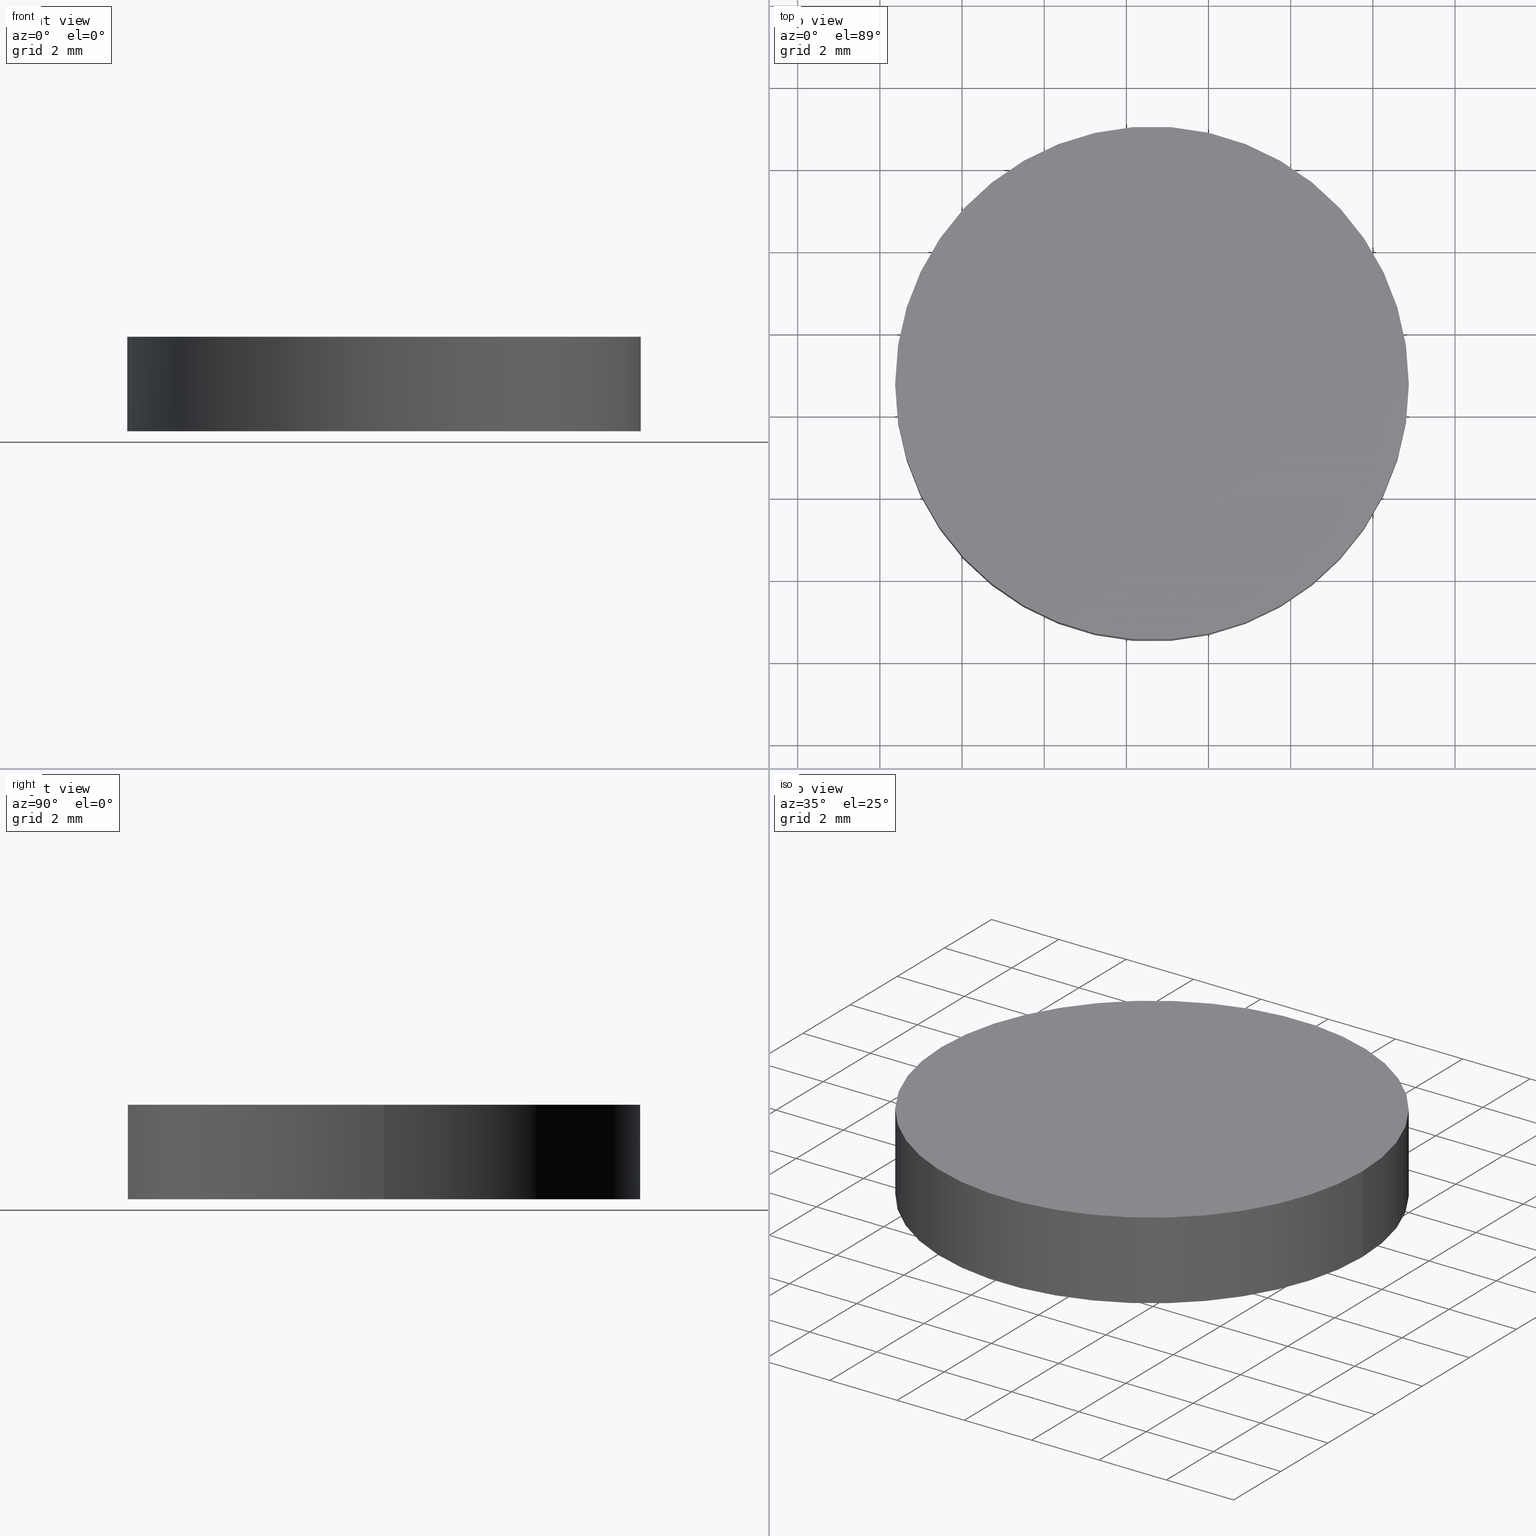
[diagram: canonical four-view strip — front | top / right | iso, engineering-drawing reading convention]
A machine part, canonical four-view strip (front | top / right | iso — engineering-drawing reading convention). The complete STEP part file that produces these views, byte-faithful:
ISO-10303-21;
HEADER;
FILE_DESCRIPTION (( 'STEP AP214' ),
    '1' );
FILE_NAME ('3025507.STEP',
    '2019-08-13T03:04:33',
    ( '' ),
    ( '' ),
    'SwSTEP 2.0',
    'SolidWorks 2016',
    '' );
FILE_SCHEMA (( 'AUTOMOTIVE_DESIGN' ));
ENDSEC;

DATA;
#1 = SURFACE_SIDE_STYLE ('',( #101 ) ) ;
#2 = LINE ( 'NONE', #33, #39 ) ;
#3 = STYLED_ITEM ( 'NONE', ( #12 ), #5 ) ;
#4 = CIRCLE ( 'NONE', #9, 6.249999999999998200 ) ;
#5 = ADVANCED_BREP_SHAPE_REPRESENTATION ( '3025507', ( #137, #95 ), #52 ) ;
#6 = DIRECTION ( 'NONE',  ( 1.000000000000000000, 0.0000000000000000000, 0.0000000000000000000 ) ) ;
#7 = PLANE ( 'NONE',  #120 ) ;
#8 = DIRECTION ( 'NONE',  ( 1.000000000000000000, 0.0000000000000000000, -0.0000000000000000000 ) ) ;
#9 = AXIS2_PLACEMENT_3D ( 'NONE', #124, #99, #48 ) ;
#10 = LINE ( 'NONE', #129, #100 ) ;
#11 = FACE_OUTER_BOUND ( 'NONE', #96, .T. ) ;
#12 = PRESENTATION_STYLE_ASSIGNMENT (( #56 ) ) ;
#13 = PRODUCT ( '3025507', '3025507', '', ( #43 ) ) ;
#14 = PRODUCT_DEFINITION ( 'δ֪', '', #15, #109 ) ;
#15 = PRODUCT_DEFINITION_FORMATION_WITH_SPECIFIED_SOURCE ( '�κ�', '', #13, .NOT_KNOWN. ) ;
#16 = SURFACE_STYLE_USAGE ( .BOTH. , #66 ) ;
#17 = CARTESIAN_POINT ( 'NONE',  ( 50.62396788794254100, 30.78162091726329700, 0.0000000000000000000 ) ) ;
#18 = COLOUR_RGB ( '',1.000000000000000000, 1.000000000000000000, 1.000000000000000000 ) ;
#19 = ORIENTED_EDGE ( 'NONE', *, *, #113, .F. ) ;
#20 = EDGE_CURVE ( 'NONE', #93, #112, #40, .T. ) ;
#21 = CARTESIAN_POINT ( 'NONE',  ( 0.0000000000000000000, 0.0000000000000000000, 0.0000000000000000000 ) ) ;
#22 = ORIENTED_EDGE ( 'NONE', *, *, #24, .F. ) ;
#23 = ORIENTED_EDGE ( 'NONE', *, *, #57, .T. ) ;
#24 = EDGE_CURVE ( 'NONE', #54, #93, #2, .T. ) ;
#25 = PLANE ( 'NONE',  #28 ) ;
#26 = CARTESIAN_POINT ( 'NONE',  ( 44.37396788794254800, 30.78162091726329700, 0.0000000000000000000 ) ) ;
#27 = DIRECTION ( 'NONE',  ( 0.0000000000000000000, 0.0000000000000000000, 1.000000000000000000 ) ) ;
#28 = AXIS2_PLACEMENT_3D ( 'NONE', #127, #136, #47 ) ;
#29 = UNCERTAINTY_MEASURE_WITH_UNIT (LENGTH_MEASURE( 1.000000000000000100E-005 ), #53, 'distance_accuracy_value', 'NONE');
#30 = ORIENTED_EDGE ( 'NONE', *, *, #24, .T. ) ;
#31 = AXIS2_PLACEMENT_3D ( 'NONE', #117, #87, #80 ) ;
#32 = AXIS2_PLACEMENT_3D ( 'NONE', #17, #61, #6 ) ;
#33 = CARTESIAN_POINT ( 'NONE',  ( 44.37396788794254800, 30.78162091726329700, 2.299999999999999800 ) ) ;
#34 = FACE_OUTER_BOUND ( 'NONE', #122, .T. ) ;
#35 =( GEOMETRIC_REPRESENTATION_CONTEXT ( 3 ) GLOBAL_UNCERTAINTY_ASSIGNED_CONTEXT ( ( #88 ) ) GLOBAL_UNIT_ASSIGNED_CONTEXT ( ( #71, #85, #94 ) ) REPRESENTATION_CONTEXT ( 'NONE', 'WORKASPACE' ) );
#36 = APPLICATION_PROTOCOL_DEFINITION ( 'draft international standard', 'automotive_design', 1998, #73 ) ;
#37 =( NAMED_UNIT ( * ) SI_UNIT ( $, .STERADIAN. ) SOLID_ANGLE_UNIT ( ) );
#38 = AXIS2_PLACEMENT_3D ( 'NONE', #50, #46, #123 ) ;
#39 = VECTOR ( 'NONE', #98, 1000.000000000000000 ) ;
#40 = CIRCLE ( 'NONE', #32, 6.249999999999998200 ) ;
#41 = STYLED_ITEM ( 'NONE', ( #92 ), #137 ) ;
#42 = CIRCLE ( 'NONE', #130, 6.249999999999998200 ) ;
#43 = PRODUCT_CONTEXT ( 'NONE', #73, 'mechanical' ) ;
#44 = ADVANCED_FACE ( 'NONE', ( #135 ), #25, .F. ) ;
#45 = ADVANCED_FACE ( 'NONE', ( #34 ), #111, .T. ) ;
#46 = DIRECTION ( 'NONE',  ( 0.0000000000000000000, 0.0000000000000000000, 1.000000000000000000 ) ) ;
#47 = DIRECTION ( 'NONE',  ( 1.000000000000000000, 0.0000000000000000000, -0.0000000000000000000 ) ) ;
#48 = DIRECTION ( 'NONE',  ( 1.000000000000000000, 0.0000000000000000000, 0.0000000000000000000 ) ) ;
#49 = MECHANICAL_DESIGN_GEOMETRIC_PRESENTATION_REPRESENTATION (  '', ( #41 ), #97 ) ;
#50 = CARTESIAN_POINT ( 'NONE',  ( 50.62396788794254100, 30.78162091726329700, 0.0000000000000000000 ) ) ;
#51 = DIRECTION ( 'NONE',  ( -0.0000000000000000000, -0.0000000000000000000, -1.000000000000000000 ) ) ;
#52 =( GEOMETRIC_REPRESENTATION_CONTEXT ( 3 ) GLOBAL_UNCERTAINTY_ASSIGNED_CONTEXT ( ( #29 ) ) GLOBAL_UNIT_ASSIGNED_CONTEXT ( ( #53, #83, #37 ) ) REPRESENTATION_CONTEXT ( 'NONE', 'WORKASPACE' ) );
#53 =( LENGTH_UNIT ( ) NAMED_UNIT ( * ) SI_UNIT ( .MILLI., .METRE. ) );
#54 = VERTEX_POINT ( 'NONE', #65 ) ;
#55 = CARTESIAN_POINT ( 'NONE',  ( 50.62396788794254100, 30.78162091726329700, 2.299999999999999800 ) ) ;
#56 = SURFACE_STYLE_USAGE ( .BOTH. , #1 ) ;
#57 = EDGE_CURVE ( 'NONE', #112, #93, #67, .T. ) ;
#58 = ORIENTED_EDGE ( 'NONE', *, *, #72, .T. ) ;
#59 = APPLICATION_PROTOCOL_DEFINITION ( 'draft international standard', 'automotive_design', 1998, #121 ) ;
#60 = FACE_OUTER_BOUND ( 'NONE', #133, .T. ) ;
#61 = DIRECTION ( 'NONE',  ( 0.0000000000000000000, 0.0000000000000000000, 1.000000000000000000 ) ) ;
#62 = MECHANICAL_DESIGN_GEOMETRIC_PRESENTATION_REPRESENTATION (  '', ( #3 ), #35 ) ;
#63 = DIRECTION ( 'NONE',  ( -1.000000000000000000, 0.0000000000000000000, 0.0000000000000000000 ) ) ;
#64 = UNCERTAINTY_MEASURE_WITH_UNIT (LENGTH_MEASURE( 1.000000000000000100E-005 ), #118, 'distance_accuracy_value', 'NONE');
#65 = CARTESIAN_POINT ( 'NONE',  ( 44.37396788794254800, 30.78162091726329700, 2.299999999999999800 ) ) ;
#66 = SURFACE_SIDE_STYLE ('',( #75 ) ) ;
#67 = CIRCLE ( 'NONE', #38, 6.249999999999998200 ) ;
#68 = FILL_AREA_STYLE_COLOUR ( '', #18 ) ;
#69 =( NAMED_UNIT ( * ) PLANE_ANGLE_UNIT ( ) SI_UNIT ( $, .RADIAN. ) );
#70 = DIRECTION ( 'NONE',  ( 1.000000000000000000, 0.0000000000000000000, 0.0000000000000000000 ) ) ;
#71 =( LENGTH_UNIT ( ) NAMED_UNIT ( * ) SI_UNIT ( .MILLI., .METRE. ) );
#72 = EDGE_CURVE ( 'NONE', #54, #89, #4, .T. ) ;
#73 = APPLICATION_CONTEXT ( 'automotive_design' ) ;
#74 = FILL_AREA_STYLE ('',( #132 ) ) ;
#75 = SURFACE_STYLE_FILL_AREA ( #91 ) ;
#76 = PRODUCT_DEFINITION_SHAPE ( 'NONE', 'NONE',  #14 ) ;
#77 = PRODUCT_RELATED_PRODUCT_CATEGORY ( 'part', '', ( #13 ) ) ;
#78 = ADVANCED_FACE ( 'NONE', ( #11 ), #86, .T. ) ;
#79 = ORIENTED_EDGE ( 'NONE', *, *, #72, .F. ) ;
#80 = DIRECTION ( 'NONE',  ( -1.000000000000000000, 0.0000000000000000000, 0.0000000000000000000 ) ) ;
#81 = PRESENTATION_LAYER_ASSIGNMENT (  '', '', ( #41 ) ) ;
#82 = ORIENTED_EDGE ( 'NONE', *, *, #20, .F. ) ;
#83 =( NAMED_UNIT ( * ) PLANE_ANGLE_UNIT ( ) SI_UNIT ( $, .RADIAN. ) );
#84 = ORIENTED_EDGE ( 'NONE', *, *, #20, .T. ) ;
#85 =( NAMED_UNIT ( * ) PLANE_ANGLE_UNIT ( ) SI_UNIT ( $, .RADIAN. ) );
#86 = CYLINDRICAL_SURFACE ( 'NONE', #105, 6.249999999999998200 ) ;
#87 = DIRECTION ( 'NONE',  ( -0.0000000000000000000, -0.0000000000000000000, -1.000000000000000000 ) ) ;
#88 = UNCERTAINTY_MEASURE_WITH_UNIT (LENGTH_MEASURE( 1.000000000000000100E-005 ), #71, 'distance_accuracy_value', 'NONE');
#89 = VERTEX_POINT ( 'NONE', #126 ) ;
#90 = CARTESIAN_POINT ( 'NONE',  ( 50.62396788794254100, 30.78162091726329700, 2.299999999999999800 ) ) ;
#91 = FILL_AREA_STYLE ('',( #68 ) ) ;
#92 = PRESENTATION_STYLE_ASSIGNMENT (( #16 ) ) ;
#93 = VERTEX_POINT ( 'NONE', #26 ) ;
#94 =( NAMED_UNIT ( * ) SI_UNIT ( $, .STERADIAN. ) SOLID_ANGLE_UNIT ( ) );
#95 = AXIS2_PLACEMENT_3D ( 'NONE', #21, #119, #103 ) ;
#96 = EDGE_LOOP ( 'NONE', ( #104, #108, #23, #22 ) ) ;
#97 =( GEOMETRIC_REPRESENTATION_CONTEXT ( 3 ) GLOBAL_UNCERTAINTY_ASSIGNED_CONTEXT ( ( #64 ) ) GLOBAL_UNIT_ASSIGNED_CONTEXT ( ( #118, #69, #140 ) ) REPRESENTATION_CONTEXT ( 'NONE', 'WORKASPACE' ) );
#98 = DIRECTION ( 'NONE',  ( -0.0000000000000000000, -0.0000000000000000000, -1.000000000000000000 ) ) ;
#99 = DIRECTION ( 'NONE',  ( 0.0000000000000000000, 0.0000000000000000000, 1.000000000000000000 ) ) ;
#100 = VECTOR ( 'NONE', #51, 1000.000000000000000 ) ;
#101 = SURFACE_STYLE_FILL_AREA ( #74 ) ;
#102 = DIRECTION ( 'NONE',  ( 0.0000000000000000000, 0.0000000000000000000, 1.000000000000000000 ) ) ;
#103 = DIRECTION ( 'NONE',  ( 1.000000000000000000, 0.0000000000000000000, 0.0000000000000000000 ) ) ;
#104 = ORIENTED_EDGE ( 'NONE', *, *, #138, .F. ) ;
#105 = AXIS2_PLACEMENT_3D ( 'NONE', #107, #125, #63 ) ;
#106 = EDGE_LOOP ( 'NONE', ( #82, #114 ) ) ;
#107 = CARTESIAN_POINT ( 'NONE',  ( 50.62396788794254100, 30.78162091726329700, 2.299999999999999800 ) ) ;
#108 = ORIENTED_EDGE ( 'NONE', *, *, #113, .T. ) ;
#109 = PRODUCT_DEFINITION_CONTEXT ( 'detailed design', #121, 'design' ) ;
#110 = PRESENTATION_LAYER_ASSIGNMENT (  '', '', ( #3 ) ) ;
#111 = CYLINDRICAL_SURFACE ( 'NONE', #31, 6.249999999999998200 ) ;
#112 = VERTEX_POINT ( 'NONE', #116 ) ;
#113 = EDGE_CURVE ( 'NONE', #89, #112, #10, .T. ) ;
#114 = ORIENTED_EDGE ( 'NONE', *, *, #57, .F. ) ;
#115 = COLOUR_RGB ( '',1.000000000000000000, 1.000000000000000000, 1.000000000000000000 ) ;
#116 = CARTESIAN_POINT ( 'NONE',  ( 56.87396788794254100, 30.78162091726329700, 0.0000000000000000000 ) ) ;
#117 = CARTESIAN_POINT ( 'NONE',  ( 50.62396788794254100, 30.78162091726329700, 2.299999999999999800 ) ) ;
#118 =( LENGTH_UNIT ( ) NAMED_UNIT ( * ) SI_UNIT ( .MILLI., .METRE. ) );
#119 = DIRECTION ( 'NONE',  ( 0.0000000000000000000, 0.0000000000000000000, 1.000000000000000000 ) ) ;
#120 = AXIS2_PLACEMENT_3D ( 'NONE', #90, #27, #8 ) ;
#121 = APPLICATION_CONTEXT ( 'automotive_design' ) ;
#122 = EDGE_LOOP ( 'NONE', ( #19, #79, #30, #84 ) ) ;
#123 = DIRECTION ( 'NONE',  ( 1.000000000000000000, 0.0000000000000000000, 0.0000000000000000000 ) ) ;
#124 = CARTESIAN_POINT ( 'NONE',  ( 50.62396788794254100, 30.78162091726329700, 2.299999999999999800 ) ) ;
#125 = DIRECTION ( 'NONE',  ( -0.0000000000000000000, -0.0000000000000000000, -1.000000000000000000 ) ) ;
#126 = CARTESIAN_POINT ( 'NONE',  ( 56.87396788794254100, 30.78162091726329700, 2.299999999999999800 ) ) ;
#127 = CARTESIAN_POINT ( 'NONE',  ( 50.62396788794254100, 30.78162091726329700, 0.0000000000000000000 ) ) ;
#128 = ORIENTED_EDGE ( 'NONE', *, *, #138, .T. ) ;
#129 = CARTESIAN_POINT ( 'NONE',  ( 56.87396788794254100, 30.78162091726329700, 2.299999999999999800 ) ) ;
#130 = AXIS2_PLACEMENT_3D ( 'NONE', #55, #102, #70 ) ;
#131 = SHAPE_DEFINITION_REPRESENTATION ( #76, #5 ) ;
#132 = FILL_AREA_STYLE_COLOUR ( '', #115 ) ;
#133 = EDGE_LOOP ( 'NONE', ( #58, #128 ) ) ;
#134 = ADVANCED_FACE ( 'NONE', ( #60 ), #7, .T. ) ;
#135 = FACE_OUTER_BOUND ( 'NONE', #106, .T. ) ;
#136 = DIRECTION ( 'NONE',  ( 0.0000000000000000000, 0.0000000000000000000, 1.000000000000000000 ) ) ;
#137 = MANIFOLD_SOLID_BREP ( '͹̨-����1', #139 ) ;
#138 = EDGE_CURVE ( 'NONE', #89, #54, #42, .T. ) ;
#139 = CLOSED_SHELL ( 'NONE', ( #78, #45, #134, #44 ) ) ;
#140 =( NAMED_UNIT ( * ) SI_UNIT ( $, .STERADIAN. ) SOLID_ANGLE_UNIT ( ) );
ENDSEC;
END-ISO-10303-21;
